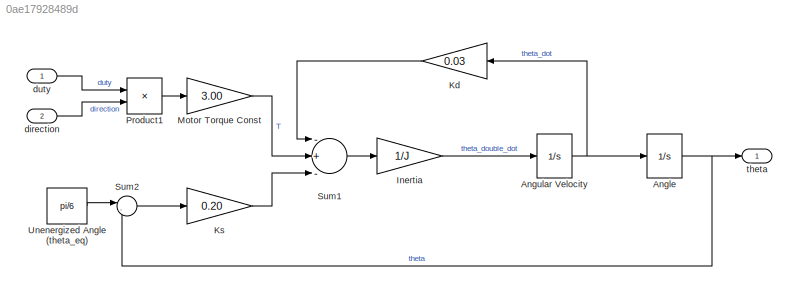
MODEL slx_0ae17928489d
KIND model
CONFIG AbsTol = auto
CONFIG EnableMultiTasking = on
CONFIG FixedStep = auto
CONFIG MaxStep = 0.1
CONFIG MinStep = auto
CONFIG PreLoadFcn = etc_plant_data;
CONFIG RelTol = 1e-3
CONFIG SampleTimeConstraint = Unconstrained
CONFIG Solver = ode45
CONFIG SolverName = ode45
CONFIG StartTime = 0.0
CONFIG StopTime = 20
BLOCK [Integrator] Angle
  AttributesFormatString = Initial condition: %<InitialCondition>\n%<LowerSaturationLimit> <= theta <= %<UpperSaturationLimit>
  InitialCondition = pi/6
  LimitOutput = on
  LowerSaturationLimit = 0
  Ports = [1, 1]
  UpperSaturationLimit = pi/2
BLOCK [Integrator] Angular Velocity
  AttributesFormatString = Initial condition: %<InitialCondition>
  Ports = [1, 1]
BLOCK [Gain] Inertia
  Gain = 1/J
BLOCK [Gain] Kd
  Gain = 0.03
BLOCK [Gain] Ks
  Gain = 0.20
BLOCK [Gain] Motor Torque Const
  Gain = 3.00
BLOCK [Product] Product1
  InputSameDT = off
  Ports = [2, 1]
  RndMeth = Floor
BLOCK [Sum] Sum1
  InputSameDT = off
  Inputs = -+-
  OutDataTypeStr = Inherit: Inherit via internal rule
  Ports = [3, 1]
BLOCK [Sum] Sum2
  IconShape = round
  InputSameDT = off
  Inputs = |-+
  OutDataTypeStr = Inherit: Inherit via internal rule
  Ports = [2, 1]
BLOCK [Constant] Unenergized Angle (theta_eq)
  Value = pi/6
BLOCK [Inport] direction
  IconDisplay = Port number
  Port = 2
BLOCK [Inport] duty
  IconDisplay = Port number
BLOCK [Outport] theta
  IconDisplay = Port number
NET Angle:1 -> Sum2:2, theta:1
NET Angular Velocity:1 -> Angle:1, Kd:1
LINE Inertia:1 -> Angular Velocity:1
LINE Kd:1 -> Sum1:1
LINE Ks:1 -> Sum1:3
LINE Motor Torque Const:1 -> Sum1:2
LINE Product1:1 -> Motor Torque Const:1
LINE Sum1:1 -> Inertia:1
LINE Sum2:1 -> Ks:1
LINE Unenergized Angle (theta_eq):1 -> Sum2:1
LINE direction:1 -> Product1:2
LINE duty:1 -> Product1:1
note: NET lines group one-source signal fan-out (src -> all destinations, sorted); 1:1 wires keep LINE
